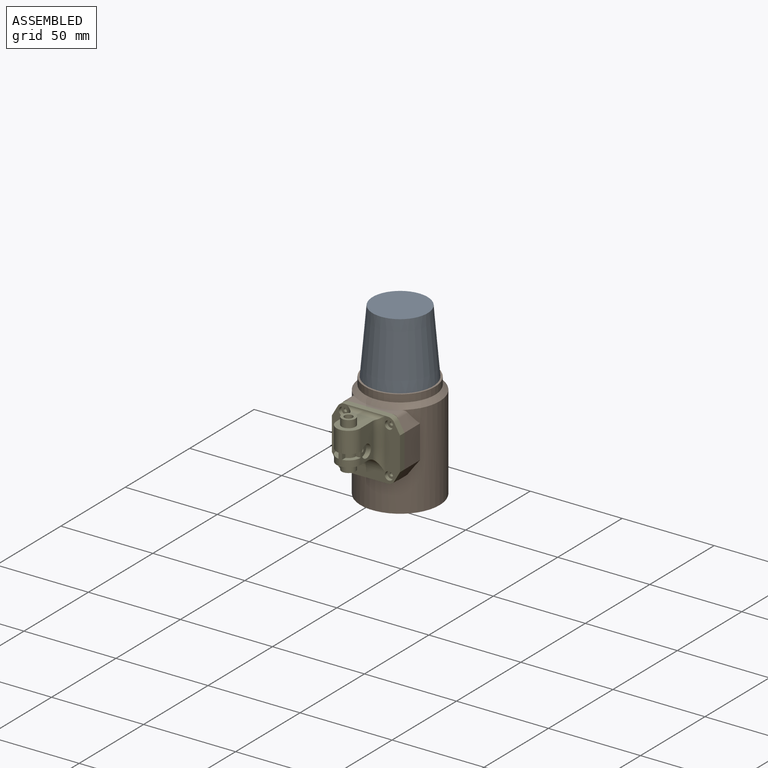
[diagram: assembled view]
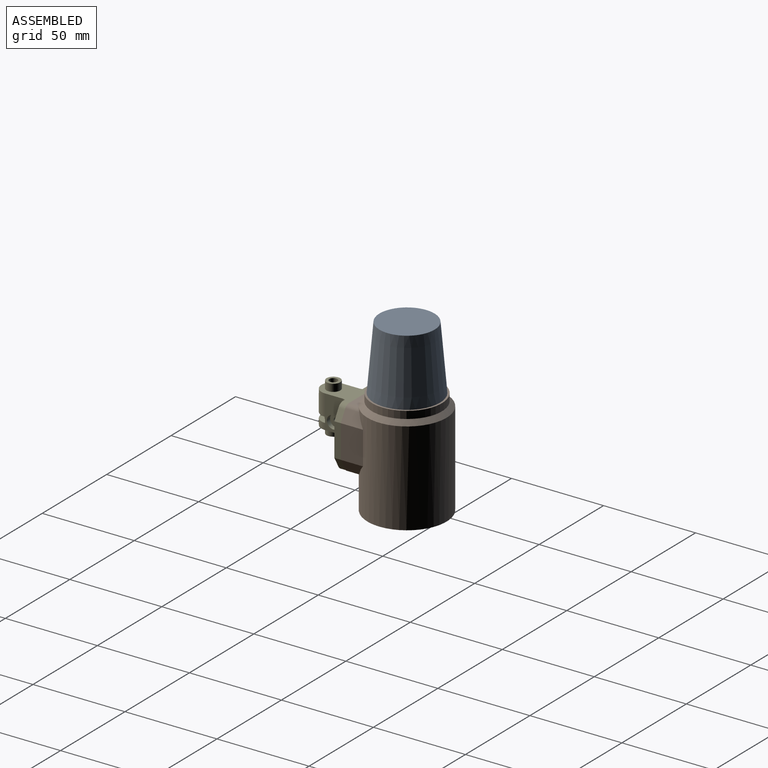
[diagram: assembled view, second angle]
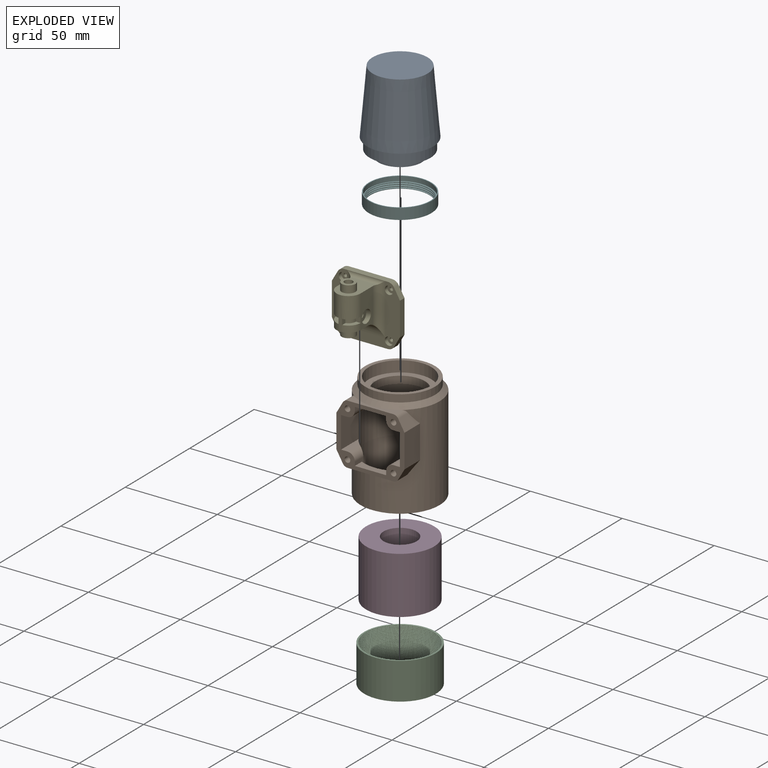
[diagram: exploded view]
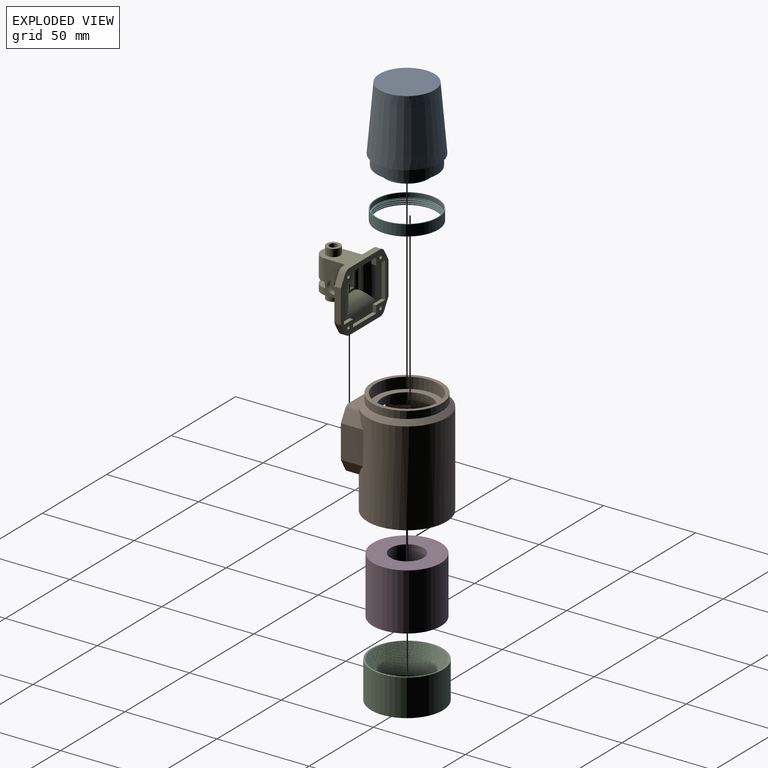
[diagram: exploded view, second angle]
ASSEMBLY  parts=6 mates=11
PART A: 9 faces, bbox 36x44.5x36 mm
  f0: cylinder r=13.25mm len=26.5mm, axis (0,-1,0), area 166.5mm2, adj f2,f4
  f1: cylinder r=16.5mm len=33mm, axis (0,1,0), area 622mm2, adj f2,f8
  f2: plane 33x33mm, normal (0,-1,0), area 303.8mm2, adj f0,f1
  f3: cylinder r=11.75mm len=23.5mm, axis (0,-1,0), area 110.7mm2, adj f4,f5
  f4: plane 26.5x26.5mm, normal (0,-1,0), area 117.8mm2, adj f0,f3
  f5: plane 23.5x23.5mm, normal (0,-1,0), area 433.7mm2, adj f3
  f6: cone r=18mm half-angle=5deg, axis (0,-1,0), area 3635.5mm2, adj f7,f8
  f7: plane 29.88x29.88mm, normal (0,1,0), area 701mm2, adj f6
  f8: plane 36x36mm, normal (0,-1,0), area 162.6mm2, adj f1,f6
PART B: 50 faces, bbox 43x44.5x57.5 mm
  f0: plane 39x37.05mm, normal (0,0,-1), area 101.8mm2, adj f1,f4,f36,f38
  f1: cylinder r=18.5mm len=37mm, axis (0,0,-1), area 2337.9mm2, adj f0,f5,f30,f31,f32,f33,f34,f35
  f2: cylinder r=21.5mm len=51mm, axis (0,0,-1), area 5530.3mm2, adj f3,f11,f12,f13,f14,f16,f17,f18
  f3: plane 43x43mm, normal (0,0,-1), area 257.6mm2, adj f2,f4
  f4: cylinder r=19.5mm len=39mm, axis (0,0,-1), area 2450.4mm2, adj f0,f3,f37
  f5: plane 37x37mm, normal (0,0,-1), area 502.7mm2, adj f1,f6,f29
  f6: cylinder r=13.5mm len=27mm, axis (0,0,-1), area 339.3mm2, adj f5,f7
  f7: plane 34x34mm, normal (0,0,1), area 335.4mm2, adj f6,f8
  f8: cylinder r=17mm len=34mm, axis (0,0,-1), area 640.9mm2, adj f7,f9
  f9: plane 38x38mm, normal (0,0,1), area 226.2mm2, adj f8,f10
  f10: cylinder r=19mm len=38mm, axis (0,0,-1), area 477.5mm2, adj f9,f11
  f11: cone r=21.5mm half-angle=45deg, axis (0,0,-1), area 449.8mm2, adj f2,f10,f15
  f12: plane 18x12.05mm, normal (-1,0,0), area 216.8mm2, adj f2,f16,f17,f20
  f13: plane 12.05x6mm, normal (0.87,0,-0.5), area 66.8mm2, adj f2,f19,f20,f48
  f14: plane 12.05x6mm, normal (0.87,0,0.5), area 66.8mm2, adj f2,f19,f20,f49
  f15: plane 24.88x5.46mm, normal (0,0,1), area 68.9mm2, adj f11,f20,f46,f49
  f16: plane 12.05x6mm, normal (-0.87,0,0.5), area 66.8mm2, adj f2,f12,f20,f46
  f17: plane 12.05x6mm, normal (-0.87,0,-0.5), area 66.8mm2, adj f2,f12,f20,f47
  f18: plane 24.88x5.46mm, normal (0,0,-1), area 68.9mm2, adj f2,f20,f47,f48
  f19: plane 18x12.05mm, normal (1,0,0), area 216.8mm2, adj f2,f13,f14,f20
  f20: plane 37x33mm, normal (0,-1,0), area 362.2mm2, adj f12,f13,f14,f15,f16,f17,f18,f19
  f21: cylinder r=1.55mm len=4.2mm, axis (0,-1,0), area 40.9mm2, adj f20,f22
  f22: plane 3.1x3.1mm, normal (0,-1,0), area 7.5mm2, adj f21
  f23: cylinder r=1.55mm len=4.2mm, axis (0,-1,0), area 40.9mm2, adj f20,f24
  f24: plane 3.1x3.1mm, normal (0,-1,0), area 7.5mm2, adj f23
  f25: cylinder r=1.55mm len=4.2mm, axis (0,-1,0), area 40.9mm2, adj f20,f26
  f26: plane 3.1x3.1mm, normal (0,-1,0), area 7.5mm2, adj f25
  f27: cylinder r=1.55mm len=4.2mm, axis (0,-1,0), area 40.9mm2, adj f20,f28
  f28: plane 3.1x3.1mm, normal (0,-1,0), area 7.5mm2, adj f27
  f29: cylinder r=18.5mm len=17mm, axis (0,0,-1), area 26.5mm2, adj f5,f30,f44,f45
  f30: plane 6.57x2mm, normal (1,0,0), area 13.1mm2, adj f1,f20,f29,f31,f45
  f31: cylinder r=4mm len=9.36mm, axis (0,-1,0), area 47mm2, adj f1,f20,f30,f32
  f32: plane 13.71x3.5mm, normal (0,0,-1), area 39.6mm2, adj f1,f20,f31,f33
  f33: plane 17x13.71mm, normal (1,0,0), area 233.1mm2, adj f1,f20,f32,f34
  f34: plane 13.71x3.5mm, normal (0,0,1), area 39.6mm2, adj f1,f20,f33,f35
  f35: cylinder r=4mm len=9.36mm, axis (0,-1,0), area 47mm2, adj f1,f20,f34,f36
  f36: plane 6.57x2mm, normal (1,0,0), area 13.1mm2, adj f0,f1,f20,f35,f37
  f37: plane 17x5.45mm, normal (0,0,1), area 70.3mm2, adj f4,f20,f36,f38
  f38: plane 6.57x2mm, normal (-1,0,0), area 13.1mm2, adj f0,f1,f20,f37,f39
  f39: cylinder r=4mm len=9.36mm, axis (0,-1,0), area 47mm2, adj f1,f20,f38,f40
  f40: plane 13.71x3.5mm, normal (0,0,1), area 39.6mm2, adj f1,f20,f39,f41
  f41: plane 17x13.71mm, normal (-1,0,0), area 233.1mm2, adj f1,f20,f40,f42
  f42: plane 13.71x3.5mm, normal (0,0,-1), area 39.6mm2, adj f1,f20,f41,f43
  f43: cylinder r=4mm len=9.36mm, axis (0,-1,0), area 47mm2, adj f1,f20,f42,f44
  f44: plane 6.57x2mm, normal (-1,0,0), area 13.1mm2, adj f1,f20,f29,f43,f45
  f45: plane 17x6.57mm, normal (0,0,-1), area 87.9mm2, adj f20,f29,f30,f44
  f46: cylinder r=3mm len=7.63mm, axis (0,-1,0), area 20.6mm2, adj f2,f15,f16,f20
  f47: cylinder r=3mm len=7.63mm, axis (0,-1,0), area 20.6mm2, adj f2,f17,f18,f20
  f48: cylinder r=3mm len=7.63mm, axis (0,-1,0), area 20.6mm2, adj f2,f13,f18,f20
  f49: cylinder r=3mm len=7.63mm, axis (0,-1,0), area 20.6mm2, adj f2,f14,f15,f20
PART C: 31 faces, bbox 39.3x44.2x20.7 mm
  f0: cylinder r=18.59mm len=37.19mm, axis (0,0,-1), area 80.4mm2, adj f1,f26,f28,f29,f30
  f1: cylinder r=18.59mm len=37.19mm, axis (0,0,-1), area 33mm2, adj f0,f2,f28,f29
  f2: cylinder r=18.59mm len=37.19mm, axis (0,0,-1), area 33mm2, adj f1,f3,f28,f29
  f3: cylinder r=18.59mm len=37.19mm, axis (0,0,-1), area 33mm2, adj f2,f4,f28,f29
  f4: cylinder r=18.59mm len=37.19mm, axis (0,0,-1), area 33mm2, adj f3,f5,f28,f29
  f5: cylinder r=18.59mm len=37.19mm, axis (0,0,-1), area 33mm2, adj f4,f6,f28,f29
  f6: cylinder r=18.59mm len=37.19mm, axis (0,0,-1), area 33mm2, adj f5,f7,f28,f29
  f7: cylinder r=18.59mm len=37.19mm, axis (0,0,-1), area 33mm2, adj f6,f8,f28,f29
  f8: cylinder r=18.59mm len=37.19mm, axis (0,0,-1), area 33mm2, adj f7,f9,f28,f29
  f9: cylinder r=18.59mm len=37.19mm, axis (0,0,-1), area 32.9mm2, adj f8,f10,f28,f29
  f10: cylinder r=18.59mm len=37.19mm, axis (0,0,-1), area 33mm2, adj f9,f11,f28,f29
  f11: cylinder r=18.59mm len=37.19mm, axis (0,0,-1), area 33mm2, adj f10,f12,f28,f29
  f12: cylinder r=18.59mm len=37.19mm, axis (0,0,-1), area 33mm2, adj f11,f13,f28,f29
  f13: cylinder r=18.59mm len=37.19mm, axis (0,0,-1), area 32.9mm2, adj f12,f14,f28,f29
  f14: cylinder r=18.59mm len=37.19mm, axis (0,0,-1), area 33mm2, adj f13,f15,f28,f29
  f15: cylinder r=18.59mm len=37.19mm, axis (0,0,-1), area 33mm2, adj f14,f16,f28,f29
  f16: cylinder r=18.59mm len=37.19mm, axis (0,0,-1), area 33mm2, adj f15,f17,f28,f29
  f17: cylinder r=18.59mm len=37.19mm, axis (0,0,-1), area 32.9mm2, adj f16,f18,f28,f29
  f18: cylinder r=18.59mm len=37.19mm, axis (0,0,-1), area 33mm2, adj f17,f19,f28,f29
  f19: cylinder r=18.59mm len=37.19mm, axis (0,0,-1), area 33mm2, adj f18,f20,f28,f29
  f20: cylinder r=18.59mm len=37.19mm, axis (0,0,-1), area 33mm2, adj f19,f21,f28,f29
  f21: cylinder r=18.59mm len=37.19mm, axis (0,0,-1), area 33mm2, adj f20,f22,f28,f29
  f22: cylinder r=18.59mm len=37.19mm, axis (0,0,-1), area 11mm2, adj f21,f27,f28,f29
  f23: cylinder r=19.5mm len=39mm, axis (0,0,-1), area 2450.4mm2, adj f24,f27
  f24: plane 39x39mm, normal (0,0,-1), area 60.5mm2, adj f23,f25
  f25: cylinder r=19mm len=38mm, axis (0,0,-1), area 358.1mm2, adj f24,f26
  f26: plane 38x38mm, normal (0,0,-1), area 47.8mm2, adj f0,f25
  f27: plane 39.3x39.3mm, normal (0,0,1), area 93.4mm2, adj f22,f23,f28,f29
  f28: bspline ~43.88x38mm, area 1222mm2, adj f0,f1,f2,f3,f4,f5,f6,f7
  f29: bspline ~43.88x38mm, area 1206.6mm2, adj f0,f1,f2,f3,f4,f5,f6,f7
  f30: plane 0.47x0.35mm, normal (-0.87,-0.5,0), area 0.1mm2, adj f0,f28,f29
PART D: 4 faces, bbox 37x31x37 mm
  f0: cylinder r=9mm len=31mm, axis (0,-1,0), area 1753mm2, adj f2,f3
  f1: cylinder r=18.5mm len=37mm, axis (0,-1,0), area 3603.4mm2, adj f2,f3
  f2: plane 37x37mm, normal (0,1,0), area 820.7mm2, adj f0,f1
  f3: plane 37x37mm, normal (0,-1,0), area 820.7mm2, adj f0,f1
PART E: 81 faces, bbox 37x35x23.5 mm
  f0: plane 10x6mm, normal (0,-1,0), area 47.7mm2, adj f2,f3,f5,f60,f61,f75
  f1: plane 10x6mm, normal (0,1,0), area 47.7mm2, adj f2,f3,f5,f60,f61,f75
  f2: plane 14x10mm, normal (1,0,0), area 132.9mm2, adj f0,f1,f6,f61,f75
  f3: plane 14x10mm, normal (-1,0,0), area 132.9mm2, adj f0,f1,f47,f60,f75
  f4: plane 37x33mm, normal (0,0,-1), area 372mm2, adj f7,f8,f9,f10,f13,f14,f15,f16
  f5: cylinder r=2.25mm len=26mm, axis (0,-1,0), area 239.6mm2, adj f0,f1,f30,f32,f60,f61
  f6: cylinder r=1.5mm len=3mm, axis (-1,0,0), area 9.4mm2, adj f2,f46
  f7: cylinder r=1mm len=2mm, axis (0,0,-1), area 9.4mm2, adj f4,f54
  f8: cylinder r=1mm len=2mm, axis (0,0,-1), area 9.4mm2, adj f4,f52
  f9: cylinder r=1mm len=2mm, axis (0,0,-1), area 9.4mm2, adj f4,f50
  f10: cylinder r=1mm len=2mm, axis (0,0,-1), area 9.4mm2, adj f4,f48
  f11: cylinder r=6.5mm len=18mm, axis (0,-1,0), area 312.3mm2, adj f21,f22,f23,f24,f35,f36,f37,f39
  f12: plane 37x33mm, normal (0,0,1), area 501.7mm2, adj f13,f14,f15,f16,f17,f18,f19,f20
  f13: plane 5.5x3.5mm, normal (0.87,0.5,0), area 22.2mm2, adj f4,f12,f20,f56
  f14: plane 23.72x3.5mm, normal (0,1,0), area 83mm2, adj f4,f12,f27,f56,f57
  f15: plane 5.5x3.5mm, normal (-0.87,0.5,0), area 22.2mm2, adj f4,f12,f16,f57
  f16: plane 18x3.5mm, normal (-1,0,0), area 63mm2, adj f4,f12,f15,f17
  f17: plane 5.5x3.5mm, normal (-0.87,-0.5,0), area 22.2mm2, adj f4,f12,f16,f58
  f18: plane 23.72x3.5mm, normal (0,-1,0), area 83mm2, adj f4,f12,f58,f59
  f19: plane 5.5x3.5mm, normal (0.87,-0.5,0), area 22.2mm2, adj f4,f12,f20,f59
  f20: plane 18x3.5mm, normal (1,0,0), area 63mm2, adj f4,f12,f13,f19
  f21: plane 18x14.07mm, normal (0,1,0), area 172.4mm2, adj f11,f22,f24,f25,f26,f27,f31
  f22: plane 19.07x9.5mm, normal (-1,0,0), area 133.9mm2, adj f11,f21,f23,f25,f28,f40,f45
  f23: plane 13x12mm, normal (0,-1,0), area 93.7mm2, adj f11,f22,f24,f28,f29
  f24: plane 19.07x9.5mm, normal (1,0,0), area 133.9mm2, adj f11,f21,f23,f26,f28,f34,f43
  f25: cylinder r=4mm len=27.99mm, axis (0,-1,0), area 141.5mm2, adj f12,f21,f22,f27,f28,f49,f55
  f26: cylinder r=4mm len=27.99mm, axis (0,1,0), area 141.5mm2, adj f12,f21,f24,f27,f28,f51,f53
  f27: cylinder r=2mm len=21mm, axis (-1,0,0), area 53.6mm2, adj f14,f21,f25,f26
  f28: cylinder r=8mm len=20.98mm, axis (1,0,0), area 188.7mm2, adj f12,f22,f23,f24,f25,f26,f53,f55
  f29: cylinder r=3.75mm len=7.5mm, axis (0,1,0), area 94.2mm2, adj f23,f30
  f30: plane 7.5x7.5mm, normal (0,-1,0), area 28.3mm2, adj f5,f29
  f31: cylinder r=3.75mm len=7.5mm, axis (0,-1,0), area 94.2mm2, adj f21,f32
  f32: plane 7.5x7.5mm, normal (0,1,0), area 28.3mm2, adj f5,f31
  f33: cylinder r=4mm len=3.87mm, axis (0,-1,0), area 15.8mm2, adj f34,f35,f36,f37
  f34: plane 3x2.5mm, normal (0,0,1), area 7.5mm2, adj f24,f33,f36,f37
  f35: plane 3x2.55mm, normal (1,0,0), area 7.6mm2, adj f11,f33,f36,f37
  f36: plane 6.42x5.5mm, normal (0,-1,0), area 18.1mm2, adj f11,f33,f34,f35
  f37: plane 6.42x5.5mm, normal (0,1,0), area 18.1mm2, adj f11,f33,f34,f35
  f38: cylinder r=4mm len=3.87mm, axis (0,-1,0), area 15.8mm2, adj f39,f40,f41,f42
  f39: plane 3x2.55mm, normal (-1,0,0), area 7.6mm2, adj f11,f38,f41,f42
  f40: plane 3x2.5mm, normal (0,0,1), area 7.5mm2, adj f22,f38,f41,f42
  f41: plane 6.42x5.5mm, normal (0,-1,0), area 18.1mm2, adj f11,f38,f39,f40
  f42: plane 6.42x5.5mm, normal (0,1,0), area 18.1mm2, adj f11,f38,f39,f40
  f43: cylinder r=3.5mm len=7mm, axis (1,0,0), area 55mm2, adj f24,f44
  f44: plane 7x7mm, normal (1,0,0), area 31.4mm2, adj f43,f47
  f45: cylinder r=3.5mm len=7mm, axis (-1,0,0), area 55mm2, adj f22,f46
  f46: plane 7x7mm, normal (-1,0,0), area 31.4mm2, adj f6,f45
  f47: cylinder r=1.5mm len=3mm, axis (-1,0,0), area 9.4mm2, adj f3,f44
  f48: plane 4.5x4.5mm, normal (0,0,1), area 12.8mm2, adj f10,f49
  f49: cylinder r=2.25mm len=4.5mm, axis (0,0,1), area 28.3mm2, adj f12,f25,f48
  f50: plane 4.5x4.5mm, normal (0,0,1), area 12.8mm2, adj f9,f51
  f51: cylinder r=2.25mm len=4.5mm, axis (0,0,1), area 28.3mm2, adj f12,f26,f50
  f52: plane 4.5x4.5mm, normal (0,0,1), area 12.8mm2, adj f8,f53
  f53: cylinder r=2.25mm len=4.5mm, axis (0,0,1), area 28.3mm2, adj f12,f26,f28,f52
  f54: plane 4.5x4.5mm, normal (0,0,1), area 12.8mm2, adj f7,f55
  f55: cylinder r=2.25mm len=4.5mm, axis (0,0,1), area 28.3mm2, adj f12,f25,f28,f54
  f56: cylinder r=4mm len=3.5mm, axis (0,0,1), area 14.7mm2, adj f4,f12,f13,f14
  f57: cylinder r=4mm len=3.5mm, axis (0,0,1), area 14.7mm2, adj f4,f12,f14,f15
  f58: cylinder r=4mm len=3.5mm, axis (0,0,-1), area 14.7mm2, adj f4,f12,f17,f18
  f59: cylinder r=4mm len=3.5mm, axis (0,0,-1), area 14.7mm2, adj f4,f12,f18,f19
  f60: plane 14x0.98mm, normal (0,0,-1), area 13.8mm2, adj f0,f1,f3,f5
  f61: plane 14x0.98mm, normal (0,0,-1), area 13.8mm2, adj f0,f1,f2,f5
  f62: plane 4x2mm, normal (-1,0,0), area 8mm2, adj f4,f63,f73,f74
  f63: plane 18x2mm, normal (0,1,0), area 36mm2, adj f4,f62,f64,f74
  f64: plane 4x2mm, normal (1,0,0), area 8mm2, adj f4,f63,f65,f74
  f65: plane 7x2mm, normal (0,1,0), area 14mm2, adj f4,f64,f66,f74
  f66: plane 19.5x2mm, normal (1,0,0), area 39mm2, adj f4,f65,f67,f74
  f67: plane 7x2.64mm, normal (0,-1,0), area 14.6mm2, adj f4,f66,f68,f74,f76
  f68: plane 4x2.64mm, normal (1,0,0), area 10.6mm2, adj f4,f67,f69,f76
  f69: plane 18x8mm, normal (0,-1,0), area 114mm2, adj f4,f68,f70,f75,f76,f77,f79,f80
  f70: plane 4x2.64mm, normal (-1,0,0), area 10.6mm2, adj f4,f69,f71,f77
  f71: plane 7x2.64mm, normal (0,-1,0), area 14.6mm2, adj f4,f70,f72,f74,f77
  f72: plane 19.5x2mm, normal (-1,0,0), area 39mm2, adj f4,f71,f73,f74
  f73: plane 7x2mm, normal (0,1,0), area 14mm2, adj f4,f62,f72,f74
  f74: plane 32x23.5mm, normal (0,0,-1), area 244.4mm2, adj f62,f63,f64,f65,f66,f67,f71,f72
  f75: plane 16x6.89mm, normal (0,0,-1), area 26.2mm2, adj f0,f1,f2,f3,f69,f78,f79,f80
  f76: cylinder r=7mm len=22.93mm, axis (0,-1,0), area 152.8mm2, adj f67,f68,f69,f74,f78,f79
  f77: cylinder r=7mm len=22.93mm, axis (0,-1,0), area 152.8mm2, adj f69,f70,f71,f74,f78,f80
  f78: cylinder r=7mm len=23.86mm, axis (-1,0,0), area 153.5mm2, adj f74,f75,f76,f77,f79,f80
  f79: cylinder r=2mm len=16.33mm, axis (0,-1,0), area 39.6mm2, adj f69,f75,f76,f78
  f80: cylinder r=2mm len=16.33mm, axis (0,-1,0), area 39.6mm2, adj f69,f75,f77,f78
PART F: 8 faces, bbox 34.5x38.7x7.1 mm
  f0: cylinder r=15.96mm len=31.92mm, axis (0,0,-1), area 133mm2, adj f1,f2,f5,f7
  f1: bspline ~38.11x33mm, area 222.8mm2, adj f0,f2,f5,f7
  f2: bspline ~38.11x33mm, area 222.5mm2, adj f0,f1,f5,f7
  f3: cylinder r=17mm len=34mm, axis (0,0,-1), area 640.9mm2, adj f4,f5
  f4: plane 34x34mm, normal (0,0,-1), area 52.6mm2, adj f3,f6
  f5: plane 34.51x34.51mm, normal (0,0,1), area 90.6mm2, adj f0,f1,f2,f3
  f6: cylinder r=16.5mm len=33mm, axis (0,0,-1), area 259.2mm2, adj f4,f7
  f7: plane 33.55x33.55mm, normal (0,0,-1), area 38mm2, adj f0,f1,f2,f6
PLACE A rot(axis=(1,0,0),90deg) t=(-129.12,-2.12,-27.09)mm
PLACE B t=(-150.62,-2.12,-84.59)mm
PLACE C t=(-129.12,-2.12,-84.59)mm
PLACE D rot(axis=(-1,0,0),90deg) t=(-129.12,-2.12,-37.09)mm
PLACE E rot(axis=(1,0,0),90deg) t=(-129.12,-25.12,-50.09)mm
PLACE F rot(axis=(1,0,0),180deg) t=(-129.12,-2.12,-27.09)mm
MATE cylindrical B.f1 <-> A.f1  axis (0,0,-1) through (-129.12,-2.12,-29.09)mm
MATE planar F.f5 <-> B.f1  axis (0,0,-1) through (-128.6,0,-33.09)mm
MATE cylindrical B.f1 <-> C.f0  axis (0,0,-1) through (-129.12,-2.12,-84.59)mm
MATE planar B.f15 <-> E.f14  axis (0,0,1) through (-116.69,-22.39,-33.59)mm
MATE planar B.f1 <-> D.f1  axis (0,0,-1) through (-129.12,-2.12,-37.09)mm
MATE cylindrical D.f1 <-> B.f1  axis (0,0,1) through (-129.12,-2.12,-37.09)mm
MATE planar A.f3 <-> B.f1  axis (0,0,-1) through (-129.12,-2.12,-33.09)mm
MATE cylindrical B.f1 <-> F.f0  axis (0,0,-1) through (-129.12,-2.12,-30.09)mm
MATE planar E.f20 <-> B.f19  axis (1,0,0) through (-110.62,-26.87,-50.09)mm
MATE planar B.f0 <-> C.f27  axis (0,0,-1) through (-129.12,1.05,-64.59)mm
MATE planar E.f4 <-> B.f49  axis (0,1,0) through (-129.12,-25.12,-50.09)mm
